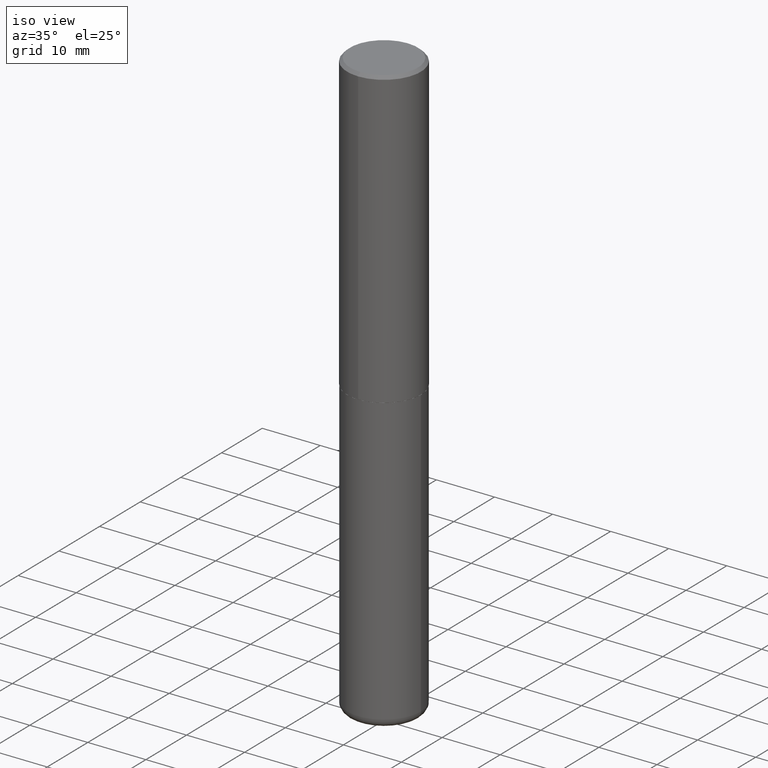
[diagram: clean part render]
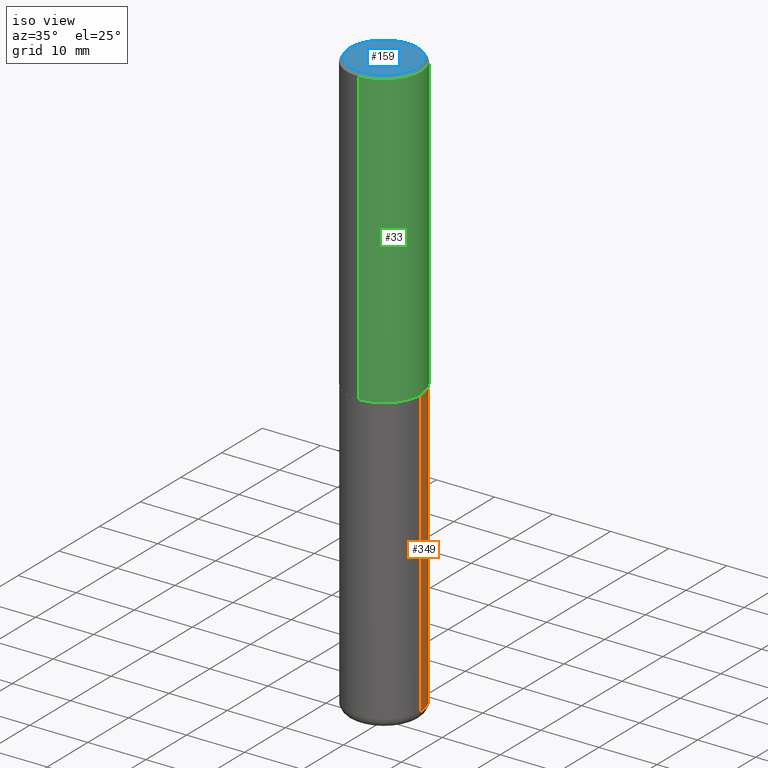
[diagram: same view with three faces highlighted in distinct colors, each labeled with its STEP entity id]
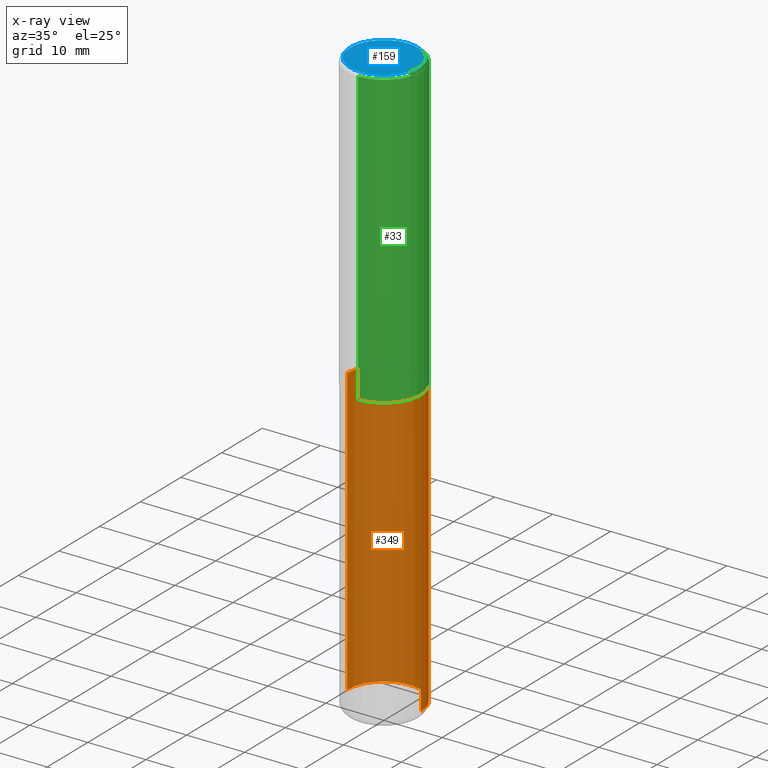
[diagram: x-ray of the same camera — body ghosted, the three highlighted faces saturated]
A machine part, iso view with three faces highlighted in distinct colors.
The next image is the same camera in x-ray (body ghosted, the three faces saturated) — at least one of them is partly hidden behind the body in this view.
Their STEP definitions:

[orange] entity #349 — the highlighted cylindrical surface (partial cylindrical patch) has radius 6.35 mm, axis along (-0, 0, 1).
#30 = CARTESIAN_POINT ( 'NONE',  ( 9.635147096369438236E-29, -1.375643647504199401E-14, -3.939999999999999947 ) ) ;
#32 = DIRECTION ( 'NONE',  ( -2.445468806185136597E-29, 3.491481338843145583E-15, 1.000000000000000000 ) ) ;
#36 = DIRECTION ( 'NONE',  ( 1.000000000000000000, -6.982962677686266711E-15, 4.876176775795935793E-29 ) ) ;
#41 = CARTESIAN_POINT ( 'NONE',  ( 0.2500000000000000000, -1.745740669421566678E-15, 1.219044193948983948E-29 ) ) ;
#63 = AXIS2_PLACEMENT_3D ( 'NONE', #102, #67, #361 ) ;
#65 = CYLINDRICAL_SURFACE ( 'NONE', #235, 0.2500000000000000000 ) ;
#66 = EDGE_LOOP ( 'NONE', ( #366, #308, #274, #115 ) ) ;
#67 = DIRECTION ( 'NONE',  ( -2.445468806185136597E-29, 3.491481338843145583E-15, 1.000000000000000000 ) ) ;
#69 = CARTESIAN_POINT ( 'NONE',  ( -0.2500000000000000000, 1.776356839400250465E-15, -1.229733772563726445E-29 ) ) ;
#93 = LINE ( 'NONE', #41, #222 ) ;
#97 = CARTESIAN_POINT ( 'NONE',  ( -0.2500000000000001110, -1.198007963564174355E-14, -3.939999999999999947 ) ) ;
#102 = CARTESIAN_POINT ( 'NONE',  ( 4.890937612370273194E-29, -6.982962677686291165E-15, -2.000000000000000000 ) ) ;
#115 = ORIENTED_EDGE ( 'NONE', *, *, #202, .F. ) ;
#133 = DIRECTION ( 'NONE',  ( -2.445468806185136877E-29, 3.491481338843145188E-15, 1.000000000000000000 ) ) ;
#163 = CIRCLE ( 'NONE', #360, 0.2500000000000000000 ) ;
#166 = EDGE_CURVE ( 'NONE', #272, #207, #163, .T. ) ;
#167 = FACE_OUTER_BOUND ( 'NONE', #66, .T. ) ;
#170 = DIRECTION ( 'NONE',  ( -2.445468806185136877E-29, 3.491481338843145188E-15, 1.000000000000000000 ) ) ;
#202 = EDGE_CURVE ( 'NONE', #272, #281, #93, .T. ) ;
#207 = VERTEX_POINT ( 'NONE', #97 ) ;
#211 = EDGE_CURVE ( 'NONE', #207, #250, #389, .T. ) ;
#221 = DIRECTION ( 'NONE',  ( 1.000000000000000000, -6.982962677686270655E-15, 0.000000000000000000 ) ) ;
#222 = VECTOR ( 'NONE', #133, 39.37007874015748143 ) ;
#235 = AXIS2_PLACEMENT_3D ( 'NONE', #236, #299, #36 ) ;
#236 = CARTESIAN_POINT ( 'NONE',  ( 0.000000000000000000, 0.000000000000000000, 0.000000000000000000 ) ) ;
#250 = VERTEX_POINT ( 'NONE', #263 ) ;
#263 = CARTESIAN_POINT ( 'NONE',  ( -0.2500000000000000000, -8.593342736963892519E-15, -2.000000000000000000 ) ) ;
#272 = VERTEX_POINT ( 'NONE', #385 ) ;
#274 = ORIENTED_EDGE ( 'NONE', *, *, #305, .F. ) ;
#281 = VERTEX_POINT ( 'NONE', #356 ) ;
#289 = CIRCLE ( 'NONE', #63, 0.2500000000000000000 ) ;
#299 = DIRECTION ( 'NONE',  ( -2.445468806185136597E-29, 3.491481338843145583E-15, 1.000000000000000000 ) ) ;
#305 = EDGE_CURVE ( 'NONE', #281, #250, #289, .T. ) ;
#308 = ORIENTED_EDGE ( 'NONE', *, *, #211, .T. ) ;
#349 = ADVANCED_FACE ( 'NONE', ( #167 ), #65, .T. ) ;
#356 = CARTESIAN_POINT ( 'NONE',  ( 0.2500000000000000000, -8.728703347107857054E-15, -2.000000000000000000 ) ) ;
#360 = AXIS2_PLACEMENT_3D ( 'NONE', #30, #32, #221 ) ;
#361 = DIRECTION ( 'NONE',  ( 1.000000000000000000, -6.982962677686266711E-15, 0.000000000000000000 ) ) ;
#366 = ORIENTED_EDGE ( 'NONE', *, *, #166, .T. ) ;
#380 = VECTOR ( 'NONE', #170, 39.37007874015748143 ) ;
#385 = CARTESIAN_POINT ( 'NONE',  ( 0.2500000000000001110, -1.550217714446356385E-14, -3.939999999999999947 ) ) ;
#389 = LINE ( 'NONE', #69, #380 ) ;

[blue] entity #159 — the highlighted planar face has unit normal (0, -0, -1).
#1 = DIRECTION ( 'NONE',  ( -2.444078991372175563E-29, 3.493471632758652550E-15, 1.000000000000000000 ) ) ;
#23 = DIRECTION ( 'NONE',  ( 6.982962677686265922E-15, 1.000000000000000000, -3.493471632758652550E-15 ) ) ;
#53 = VERTEX_POINT ( 'NONE', #126 ) ;
#60 = DIRECTION ( 'NONE',  ( 2.444078991372175283E-29, -3.493471632758652550E-15, -1.000000000000000000 ) ) ;
#79 = AXIS2_PLACEMENT_3D ( 'NONE', #190, #291, #418 ) ;
#110 = VERTEX_POINT ( 'NONE', #132 ) ;
#118 = EDGE_LOOP ( 'NONE', ( #212, #206 ) ) ;
#126 = CARTESIAN_POINT ( 'NONE',  ( -1.646519519465166376E-15, -0.2299999999999997047, 1.115557654912385711E-15 ) ) ;
#132 = CARTESIAN_POINT ( 'NONE',  ( 1.675911042644703182E-15, 0.2299999999999997047, -4.914392961565924424E-16 ) ) ;
#159 = ADVANCED_FACE ( 'NONE', ( #323 ), #346, .F. ) ;
#172 = EDGE_CURVE ( 'NONE', #53, #110, #229, .T. ) ;
#190 = CARTESIAN_POINT ( 'NONE',  ( -7.626972843823584403E-45, 1.090169890898625670E-30, 3.120591793778966343E-16 ) ) ;
#196 = EDGE_CURVE ( 'NONE', #110, #53, #375, .T. ) ;
#206 = ORIENTED_EDGE ( 'NONE', *, *, #172, .T. ) ;
#212 = ORIENTED_EDGE ( 'NONE', *, *, #196, .T. ) ;
#229 = CIRCLE ( 'NONE', #79, 0.2299999999999997047 ) ;
#234 = AXIS2_PLACEMENT_3D ( 'NONE', #286, #1, #378 ) ;
#286 = CARTESIAN_POINT ( 'NONE',  ( -7.626972843823584403E-45, 1.090169890898625670E-30, 3.120591793778966343E-16 ) ) ;
#291 = DIRECTION ( 'NONE',  ( -2.444078991372175563E-29, 3.493471632758652550E-15, 1.000000000000000000 ) ) ;
#313 = CARTESIAN_POINT ( 'NONE',  ( 1.606081415867839095E-15, 0.2299999999999997047, -6.474688858455407103E-16 ) ) ;
#315 = AXIS2_PLACEMENT_3D ( 'NONE', #313, #60, #23 ) ;
#323 = FACE_OUTER_BOUND ( 'NONE', #118, .T. ) ;
#346 = PLANE ( 'NONE',  #315 ) ;
#375 = CIRCLE ( 'NONE', #234, 0.2299999999999997047 ) ;
#378 = DIRECTION ( 'NONE',  ( -6.982962677686265922E-15, -1.000000000000000000, 3.493471632758652550E-15 ) ) ;
#418 = DIRECTION ( 'NONE',  ( -6.982962677686265922E-15, -1.000000000000000000, 3.493471632758652550E-15 ) ) ;

[green] entity #33 — the highlighted cylindrical surface (partial cylindrical patch) has radius 6.35 mm, axis along (-0, 0, 1).
#6 = DIRECTION ( 'NONE',  ( -6.982962677686265133E-15, -1.000000000000000000, 3.500180241882336472E-15 ) ) ;
#9 = VECTOR ( 'NONE', #142, 39.37007874015748143 ) ;
#22 = VERTEX_POINT ( 'NONE', #145 ) ;
#24 = VECTOR ( 'NONE', #288, 39.37007874015748143 ) ;
#31 = AXIS2_PLACEMENT_3D ( 'NONE', #242, #157, #223 ) ;
#33 = ADVANCED_FACE ( 'NONE', ( #217 ), #109, .T. ) ;
#39 = EDGE_LOOP ( 'NONE', ( #317, #182, #169, #68 ) ) ;
#40 = CARTESIAN_POINT ( 'NONE',  ( 4.888157982744373443E-31, -6.986943265517335816E-17, -0.02000000000000009062 ) ) ;
#59 = CARTESIAN_POINT ( 'NONE',  ( 1.776356839400251254E-15, 0.2500000000000001110, -8.733679081896635319E-16 ) ) ;
#62 = LINE ( 'NONE', #59, #24 ) ;
#68 = ORIENTED_EDGE ( 'NONE', *, *, #248, .F. ) ;
#90 = VERTEX_POINT ( 'NONE', #192 ) ;
#98 = CIRCLE ( 'NONE', #353, 0.2500000000000000555 ) ;
#104 = DIRECTION ( 'NONE',  ( -6.982962677686265922E-15, -1.000000000000000000, 3.278217592397112312E-15 ) ) ;
#109 = CYLINDRICAL_SURFACE ( 'NONE', #31, 0.2500000000000001110 ) ;
#121 = EDGE_CURVE ( 'NONE', #22, #90, #62, .T. ) ;
#138 = DIRECTION ( 'NONE',  ( -2.444078991372175563E-29, 3.493471632758652550E-15, 1.000000000000000000 ) ) ;
#142 = DIRECTION ( 'NONE',  ( -2.444078991372175563E-29, 3.493471632758652550E-15, 1.000000000000000000 ) ) ;
#145 = CARTESIAN_POINT ( 'NONE',  ( 1.776356839400276103E-15, 0.2499999999999932832, -1.999000000000000776 ) ) ;
#157 = DIRECTION ( 'NONE',  ( -2.444078991372175563E-29, 3.493471632758652550E-15, 1.000000000000000000 ) ) ;
#169 = ORIENTED_EDGE ( 'NONE', *, *, #277, .F. ) ;
#173 = CARTESIAN_POINT ( 'NONE',  ( 4.885713903752978284E-29, -6.983449793884546288E-15, -1.998999999999999888 ) ) ;
#182 = ORIENTED_EDGE ( 'NONE', *, *, #121, .T. ) ;
#192 = CARTESIAN_POINT ( 'NONE',  ( 1.745740669421567269E-15, 0.2499999999999999722, -0.02000000000000096492 ) ) ;
#217 = FACE_OUTER_BOUND ( 'NONE', #39, .T. ) ;
#223 = DIRECTION ( 'NONE',  ( -6.982962677686266711E-15, -1.000000000000000000, 3.493471632758652550E-15 ) ) ;
#230 = LINE ( 'NONE', #296, #9 ) ;
#233 = CARTESIAN_POINT ( 'NONE',  ( -1.745740669421519543E-15, -0.2500000000000072720, -1.998999999999999000 ) ) ;
#242 = CARTESIAN_POINT ( 'NONE',  ( 0.000000000000000000, 0.000000000000000000, 0.000000000000000000 ) ) ;
#248 = EDGE_CURVE ( 'NONE', #297, #404, #230, .T. ) ;
#251 = AXIS2_PLACEMENT_3D ( 'NONE', #173, #138, #104 ) ;
#270 = EDGE_CURVE ( 'NONE', #297, #22, #335, .T. ) ;
#277 = EDGE_CURVE ( 'NONE', #404, #90, #98, .T. ) ;
#288 = DIRECTION ( 'NONE',  ( -2.444078991372175563E-29, 3.493471632758652550E-15, 1.000000000000000000 ) ) ;
#296 = CARTESIAN_POINT ( 'NONE',  ( -1.745740669421567467E-15, -0.2500000000000001110, 8.733679081896635319E-16 ) ) ;
#297 = VERTEX_POINT ( 'NONE', #233 ) ;
#306 = CARTESIAN_POINT ( 'NONE',  ( -1.715124499442882496E-15, -0.2500000000000001110, -0.01999999999999921632 ) ) ;
#317 = ORIENTED_EDGE ( 'NONE', *, *, #270, .T. ) ;
#330 = DIRECTION ( 'NONE',  ( -2.444078991372175563E-29, 3.493471632758652550E-15, 1.000000000000000000 ) ) ;
#335 = CIRCLE ( 'NONE', #251, 0.2500000000000002776 ) ;
#353 = AXIS2_PLACEMENT_3D ( 'NONE', #40, #330, #6 ) ;
#404 = VERTEX_POINT ( 'NONE', #306 ) ;